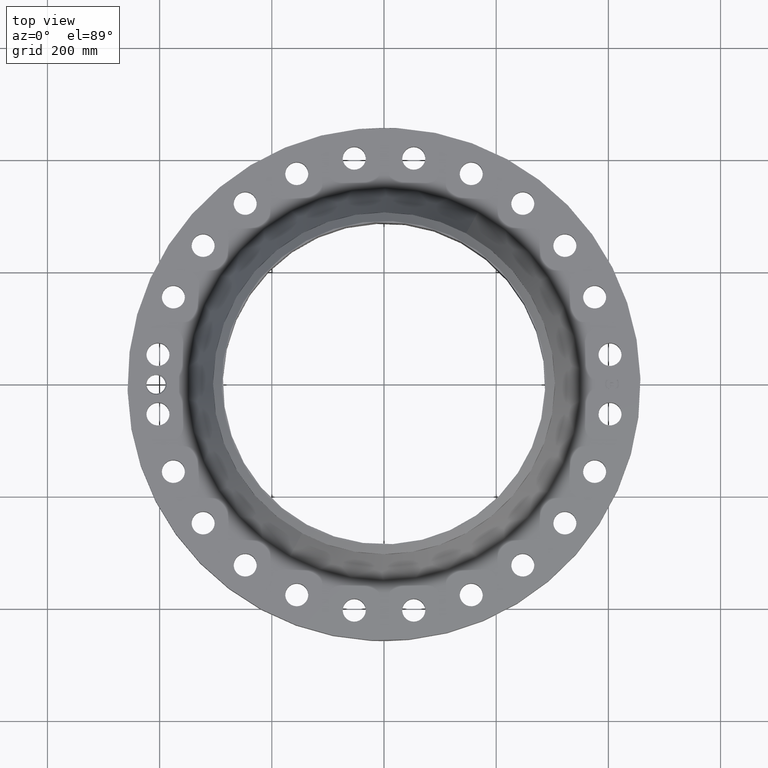
[diagram: clean part render]
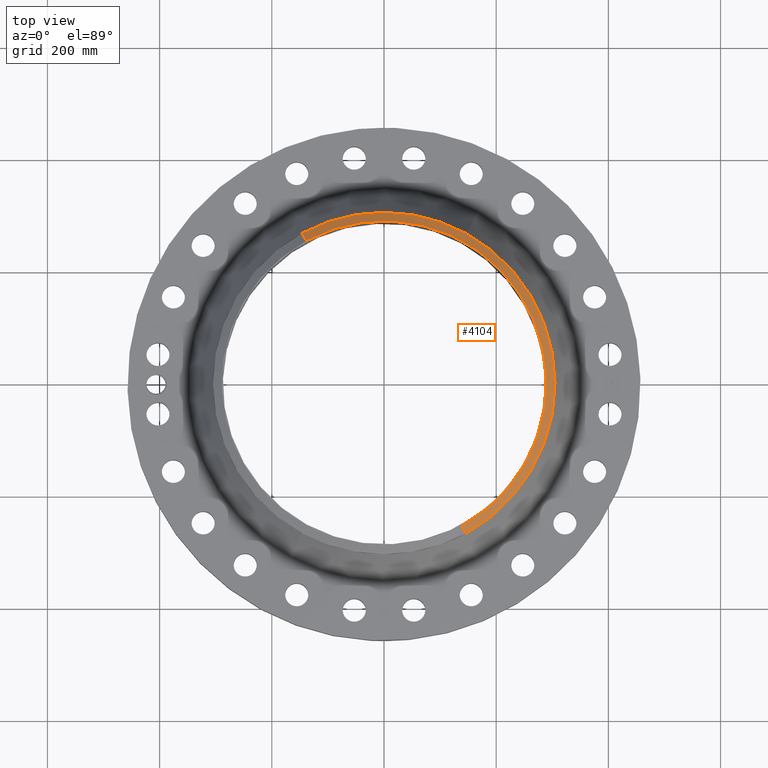
[diagram: same view with one face highlighted and labeled with its STEP entity id]
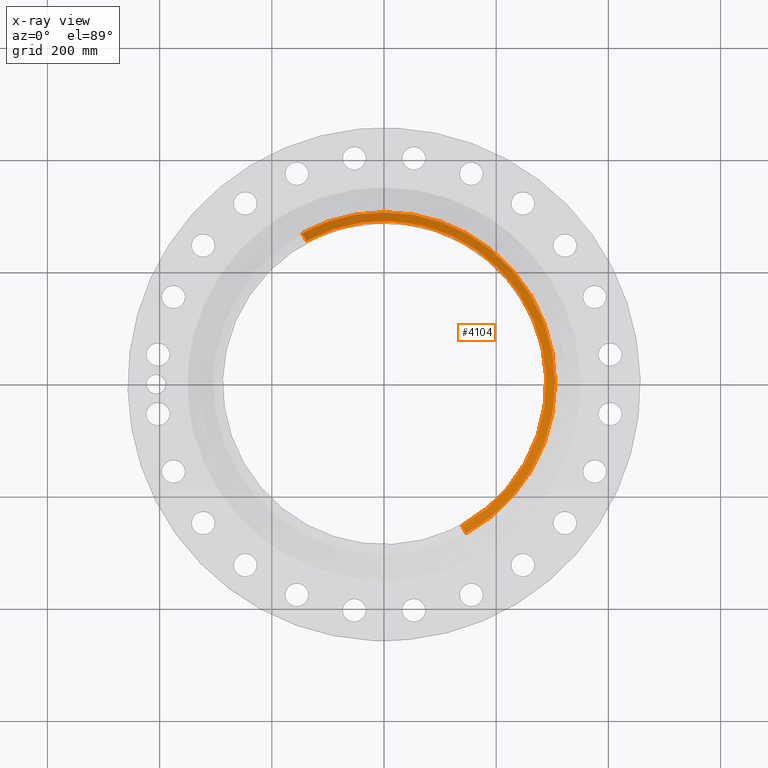
[diagram: x-ray of the same camera — body ghosted, the highlighted face saturated]
A machine part, top view. The second image highlights one B-rep face of the part: STEP entity #4104.
The next image is the same camera in x-ray: the body ghosted, the highlighted face saturated — about 0% of this face is hidden behind the body in this view.
In plain terms, the highlighted conical surface has half-angle 52.5 deg.
Its self-contained STEP definition (entity closure, byte-faithful):
#3216=AXIS2_PLACEMENT_3D('Circle Axis2P3D',#3214,#3215,$) ;
#4049=AXIS2_PLACEMENT_3D('Cone Axis2P3D',#4046,#4047,#4048) ;
#4087=AXIS2_PLACEMENT_3D('Circle Axis2P3D',#4085,#4086,$) ;
#4094=AXIS2_PLACEMENT_3D('Circle Axis2P3D',#4092,#4093,$) ;
#3214=CARTESIAN_POINT('Axis2P3D Location',(0.,0.,6.68000000003)) ;
#3218=CARTESIAN_POINT('Vertex',(5.46101173512,-9.99631492927,6.68000000003)) ;
#3220=CARTESIAN_POINT('Vertex',(-5.46101173512,9.99631492927,6.68000000003)) ;
#4046=CARTESIAN_POINT('Axis2P3D Location',(0.,0.,6.68000000003)) ;
#4051=CARTESIAN_POINT('Line Origine',(5.6070590992,-10.263652836,6.4462492401)) ;
#4055=CARTESIAN_POINT('Vertex',(5.75310646327,-10.5309907427,6.21249848017)) ;
#4058=CARTESIAN_POINT('Line Origine',(-5.6070590992,10.263652836,6.4462492401)) ;
#4062=CARTESIAN_POINT('Vertex',(-5.75310646327,10.5309907427,6.21249848017)) ;
#4085=CARTESIAN_POINT('Axis2P3D Location',(0.,0.,6.21249848017)) ;
#4089=CARTESIAN_POINT('Vertex',(5.75310646327,10.5309907427,6.21249848017)) ;
#4092=CARTESIAN_POINT('Axis2P3D Location',(0.,0.,6.21249848017)) ;
#3215=DIRECTION('Axis2P3D Direction',(0.,0.,-0.0393700787402)) ;
#4047=DIRECTION('Axis2P3D Direction',(-0.,-0.,-0.0393700787402)) ;
#4048=DIRECTION('Axis2P3D XDirection',(-0.0188750212049,0.0345504945626,0.)) ;
#4052=DIRECTION('Vector Direction',(0.014974561121,-0.02741075027,-0.023966985394)) ;
#4059=DIRECTION('Vector Direction',(-0.014974561121,0.02741075027,-0.023966985394)) ;
#4086=DIRECTION('Axis2P3D Direction',(0.,0.,-0.0393700787402)) ;
#4093=DIRECTION('Axis2P3D Direction',(0.,0.,-0.0393700787402)) ;
#4053=VECTOR('Line Direction',#4052,0.0393700787402) ;
#4060=VECTOR('Line Direction',#4059,0.0393700787402) ;
#4098=ORIENTED_EDGE('',*,*,#4064,.F.) ;
#4099=ORIENTED_EDGE('',*,*,#3222,.F.) ;
#4100=ORIENTED_EDGE('',*,*,#4057,.T.) ;
#4101=ORIENTED_EDGE('',*,*,#4091,.T.) ;
#4102=ORIENTED_EDGE('',*,*,#4096,.F.) ;
#4104=ADVANCED_FACE('PartBody',(#4103),#4050,.T.) ;
#3217=CIRCLE('generated circle',#3216,11.3907401575) ;
#4088=CIRCLE('generated circle',#4087,12.) ;
#4095=CIRCLE('generated circle',#4094,12.) ;
#4050=CONICAL_SURFACE('Cone',#4049,11.3907401575,0.916297857297) ;
#3222=EDGE_CURVE('',#3219,#3221,#3217,.F.) ;
#4057=EDGE_CURVE('',#3219,#4056,#4054,.T.) ;
#4064=EDGE_CURVE('',#3221,#4063,#4061,.T.) ;
#4091=EDGE_CURVE('',#4056,#4090,#4088,.F.) ;
#4096=EDGE_CURVE('',#4063,#4090,#4095,.T.) ;
#4097=EDGE_LOOP('',(#4098,#4099,#4100,#4101,#4102)) ;
#4103=FACE_OUTER_BOUND('',#4097,.T.) ;
#4054=LINE('Line',#4051,#4053) ;
#4061=LINE('Line',#4058,#4060) ;
#3219=VERTEX_POINT('',#3218) ;
#3221=VERTEX_POINT('',#3220) ;
#4056=VERTEX_POINT('',#4055) ;
#4063=VERTEX_POINT('',#4062) ;
#4090=VERTEX_POINT('',#4089) ;